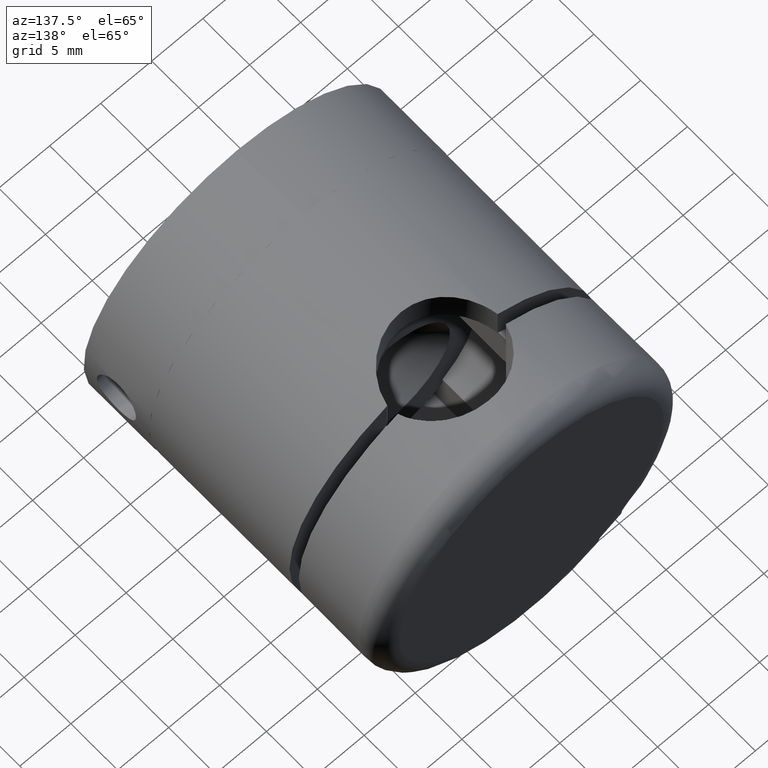
[diagram: clean part render]
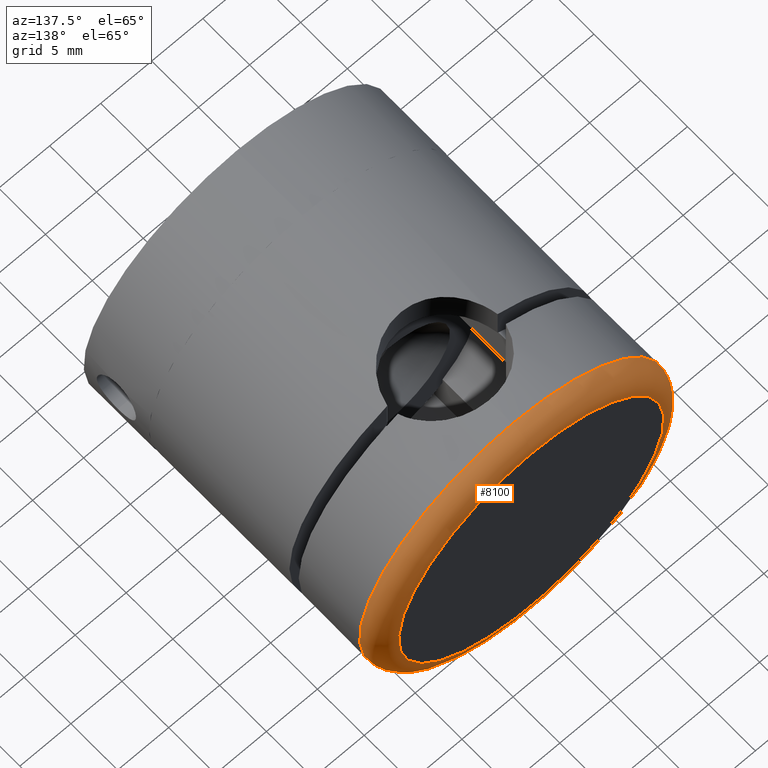
[diagram: same view with one face highlighted and labeled with its STEP entity id]
A machine part, auxiliary view. The second image highlights one B-rep face of the part: STEP entity #8100.
In plain terms, the highlighted toroidal blend (fillet) surface has major radius 13 mm and minor (blend) radius 2 mm.
Its self-contained STEP definition (entity closure, byte-faithful):
#965 = CARTESIAN_POINT ( 'NONE',  ( 0.0000000000000000000, 3.499999999999999600, -15.00000000000000000 ) ) ;
#1029 = DIRECTION ( 'NONE',  ( 0.0000000000000000000, -1.000000000000000000, 0.0000000000000000000 ) ) ;
#1072 = DIRECTION ( 'NONE',  ( 0.0000000000000000000, 0.0000000000000000000, -1.000000000000000000 ) ) ;
#1811 = DIRECTION ( 'NONE',  ( -0.0000000000000000000, 1.000000000000000000, -0.0000000000000000000 ) ) ;
#3196 = CARTESIAN_POINT ( 'NONE',  ( 0.0000000000000000000, 3.499999999999999600, 0.0000000000000000000 ) ) ;
#3407 = DIRECTION ( 'NONE',  ( 0.0000000000000000000, 0.0000000000000000000, -1.000000000000000000 ) ) ;
#3617 = FACE_OUTER_BOUND ( 'NONE', #11182, .T. ) ;
#4079 = ORIENTED_EDGE ( 'NONE', *, *, #10406, .F. ) ;
#4657 = VERTEX_POINT ( 'NONE', #15524 ) ;
#5180 = EDGE_CURVE ( 'NONE', #13793, #13793, #15502, .T. ) ;
#6269 = TOROIDAL_SURFACE ( 'NONE', #14897, 13.00000000000000000, 2.000000000000000000 ) ;
#6442 = AXIS2_PLACEMENT_3D ( 'NONE', #16857, #1029, #1072 ) ;
#6690 = FACE_OUTER_BOUND ( 'NONE', #12286, .T. ) ;
#6985 = AXIS2_PLACEMENT_3D ( 'NONE', #3196, #1811, #16471 ) ;
#7403 = CARTESIAN_POINT ( 'NONE',  ( 0.0000000000000000000, 3.499999999999999600, 0.0000000000000000000 ) ) ;
#8100 = ADVANCED_FACE ( 'NONE', ( #3617, #6690 ), #6269, .T. ) ;
#9128 = CIRCLE ( 'NONE', #6442, 13.00000000000000000 ) ;
#9131 = ORIENTED_EDGE ( 'NONE', *, *, #5180, .F. ) ;
#10406 = EDGE_CURVE ( 'NONE', #4657, #4657, #9128, .T. ) ;
#11182 = EDGE_LOOP ( 'NONE', ( #9131 ) ) ;
#12286 = EDGE_LOOP ( 'NONE', ( #4079 ) ) ;
#13793 = VERTEX_POINT ( 'NONE', #965 ) ;
#14897 = AXIS2_PLACEMENT_3D ( 'NONE', #7403, #15403, #3407 ) ;
#15403 = DIRECTION ( 'NONE',  ( 0.0000000000000000000, -1.000000000000000000, 0.0000000000000000000 ) ) ;
#15502 = CIRCLE ( 'NONE', #6985, 15.00000000000000000 ) ;
#15524 = CARTESIAN_POINT ( 'NONE',  ( 0.0000000000000000000, 1.500000000000000000, -13.00000000000000000 ) ) ;
#16471 = DIRECTION ( 'NONE',  ( 0.0000000000000000000, 0.0000000000000000000, -1.000000000000000000 ) ) ;
#16857 = CARTESIAN_POINT ( 'NONE',  ( 0.0000000000000000000, 1.500000000000000000, 0.0000000000000000000 ) ) ;